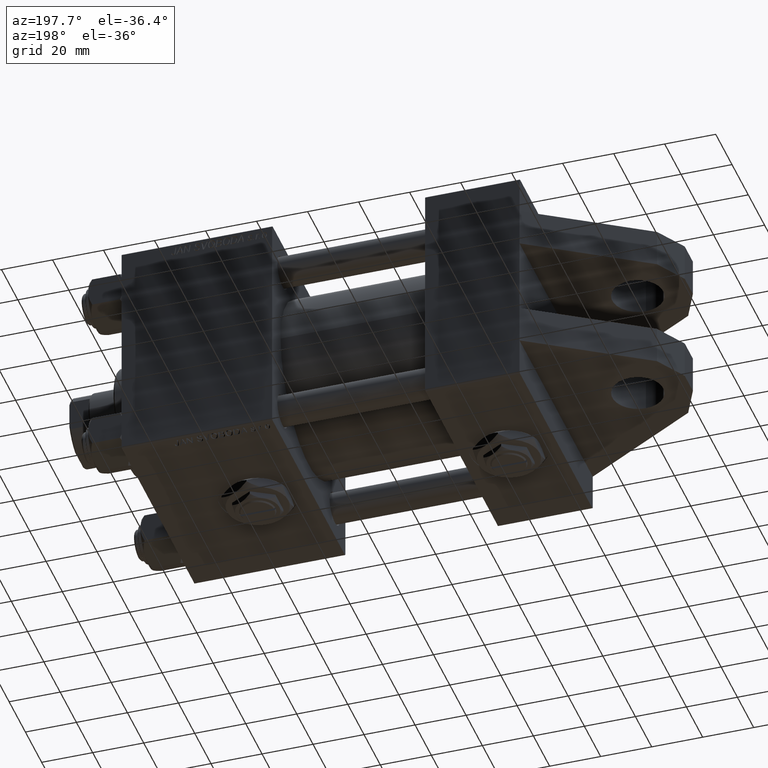
[diagram: clean part render]
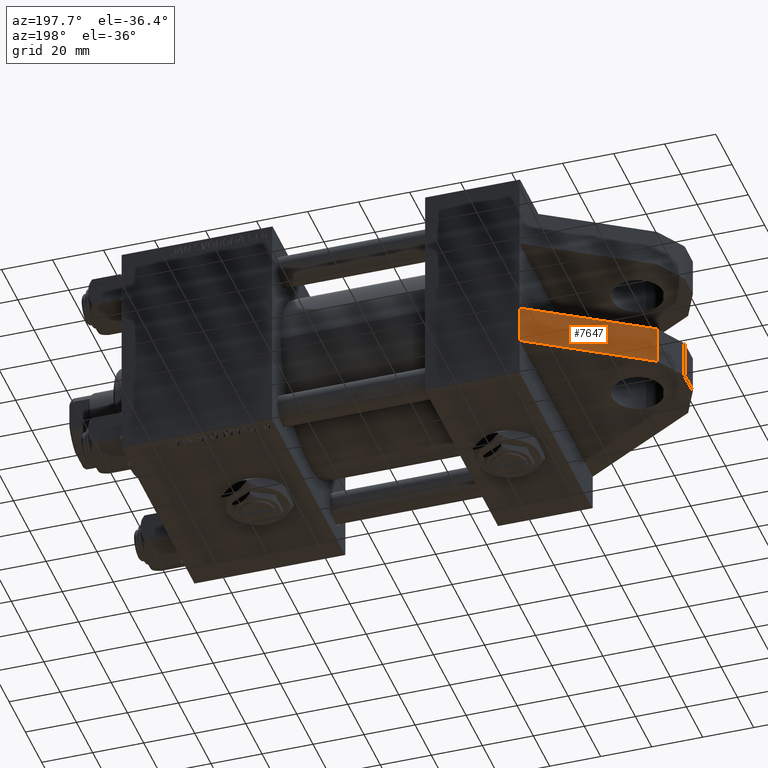
[diagram: same view with one face highlighted and labeled with its STEP entity id]
A machine part, auxiliary view. The second image highlights one B-rep face of the part: STEP entity #7647.
In plain terms, the highlighted planar face has unit normal (0.5302, -0.8479, 0).
Its self-contained STEP definition (entity closure, byte-faithful):
#6525 = PLANE ( 'NONE',  #17061 ) ;
#6583 = VECTOR ( 'NONE', #8023, 1000.000000000000000 ) ;
#6824 = EDGE_CURVE ( 'NONE', #25666, #18066, #16871, .T. ) ;
#7425 = CARTESIAN_POINT ( 'NONE',  ( 0.000000000000000000, 30.00000000000000355, 45.00000000000001421 ) ) ;
#7647 = ADVANCED_FACE ( 'NONE', ( #37716 ), #6525, .F. ) ;
#7928 = VERTEX_POINT ( 'NONE', #35085 ) ;
#8023 = DIRECTION ( 'NONE',  ( -0.000000000000000000, -1.000000000000000000, -0.000000000000000000 ) ) ;
#11281 = VERTEX_POINT ( 'NONE', #51374 ) ;
#13331 = ORIENTED_EDGE ( 'NONE', *, *, #18651, .T. ) ;
#13608 = EDGE_CURVE ( 'NONE', #7928, #11281, #17462, .T. ) ;
#15626 = LINE ( 'NONE', #27164, #6583 ) ;
#15826 = VECTOR ( 'NONE', #32580, 1000.000000000000114 ) ;
#16871 = LINE ( 'NONE', #45412, #15826 ) ;
#17061 = AXIS2_PLACEMENT_3D ( 'NONE', #22502, #38227, #21452 ) ;
#17462 = LINE ( 'NONE', #42083, #34714 ) ;
#18066 = VERTEX_POINT ( 'NONE', #7425 ) ;
#18651 = EDGE_CURVE ( 'NONE', #25666, #7928, #22170, .T. ) ;
#21452 = DIRECTION ( 'NONE',  ( -0.8478744008358545248, 0.000000000000000000, -0.5301971335335948776 ) ) ;
#22170 = LINE ( 'NONE', #30304, #41603 ) ;
#22502 = CARTESIAN_POINT ( 'NONE',  ( -44.91602078046192048, 30.00000000000000000, 16.91288539427591431 ) ) ;
#25666 = VERTEX_POINT ( 'NONE', #29484 ) ;
#27164 = CARTESIAN_POINT ( 'NONE',  ( 0.000000000000000000, 30.00000000000000000, 45.00000000000000000 ) ) ;
#29484 = CARTESIAN_POINT ( 'NONE',  ( -44.91602078046192048, 30.00000000000000000, 16.91288539427591431 ) ) ;
#30304 = CARTESIAN_POINT ( 'NONE',  ( -44.91602078046192048, 30.00000000000000000, 16.91288539427591431 ) ) ;
#32580 = DIRECTION ( 'NONE',  ( 0.8478744008358545248, 0.000000000000000000, 0.5301971335335947666 ) ) ;
#33156 = DIRECTION ( 'NONE',  ( 0.8478744008358545248, 0.000000000000000000, 0.5301971335335947666 ) ) ;
#34714 = VECTOR ( 'NONE', #33156, 1000.000000000000114 ) ;
#35085 = CARTESIAN_POINT ( 'NONE',  ( -44.91602078046192048, 15.00000000000000000, 16.91288539427591431 ) ) ;
#37716 = FACE_OUTER_BOUND ( 'NONE', #50651, .T. ) ;
#38227 = DIRECTION ( 'NONE',  ( 0.5301971335335949886, 0.000000000000000000, -0.8478744008358546358 ) ) ;
#41603 = VECTOR ( 'NONE', #46520, 1000.000000000000000 ) ;
#42083 = CARTESIAN_POINT ( 'NONE',  ( -44.91602078046192048, 15.00000000000000000, 16.91288539427591431 ) ) ;
#42291 = ORIENTED_EDGE ( 'NONE', *, *, #47794, .F. ) ;
#45412 = CARTESIAN_POINT ( 'NONE',  ( -44.91602078046192048, 30.00000000000000000, 16.91288539427591431 ) ) ;
#46520 = DIRECTION ( 'NONE',  ( -0.000000000000000000, -1.000000000000000000, -0.000000000000000000 ) ) ;
#47794 = EDGE_CURVE ( 'NONE', #18066, #11281, #15626, .T. ) ;
#47986 = ORIENTED_EDGE ( 'NONE', *, *, #6824, .F. ) ;
#50084 = ORIENTED_EDGE ( 'NONE', *, *, #13608, .T. ) ;
#50651 = EDGE_LOOP ( 'NONE', ( #50084, #42291, #47986, #13331 ) ) ;
#51374 = CARTESIAN_POINT ( 'NONE',  ( 0.000000000000000000, 15.00000000000000711, 45.00000000000000711 ) ) ;